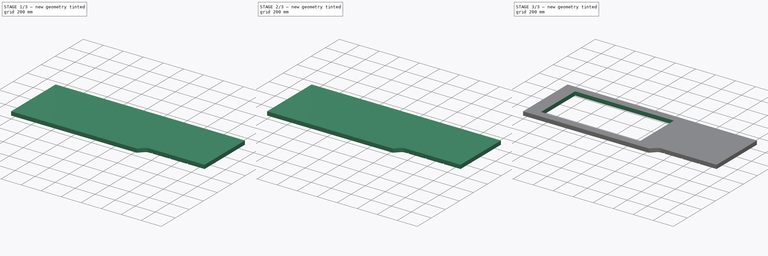
[diagram: build sequence overview — one tinted view per stage of 3, left to right]
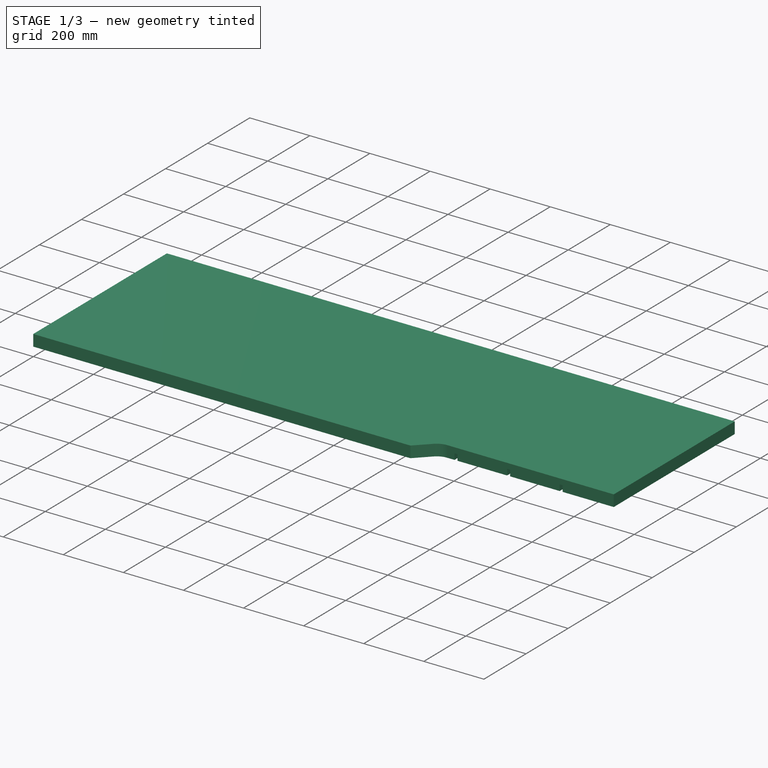
[diagram: stage 1 of 3 — iso view after this stage's code; geometry added in this stage tinted green]
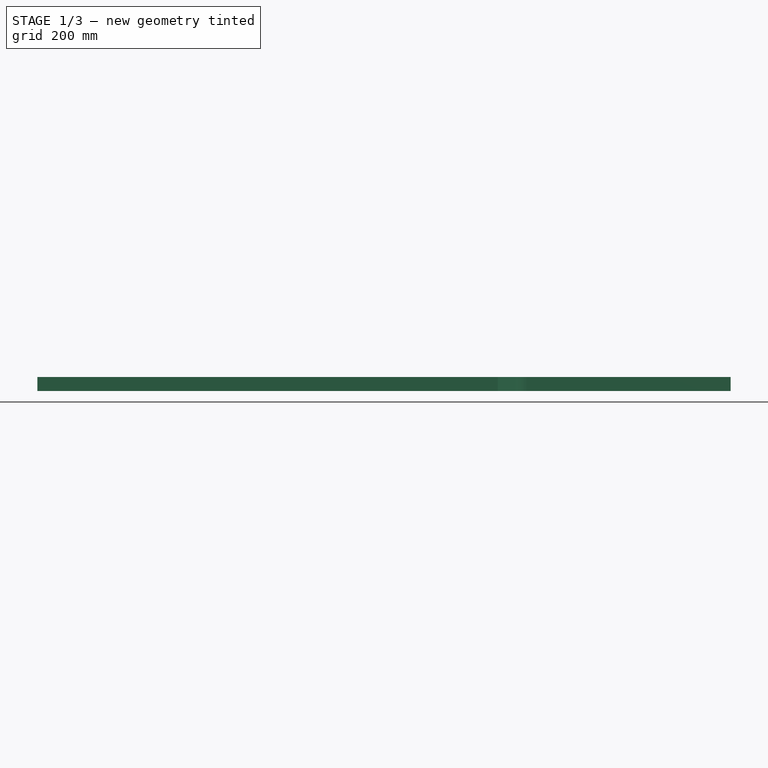
[diagram: stage 1 of 3 — front view after this stage's code; geometry added in this stage tinted green]
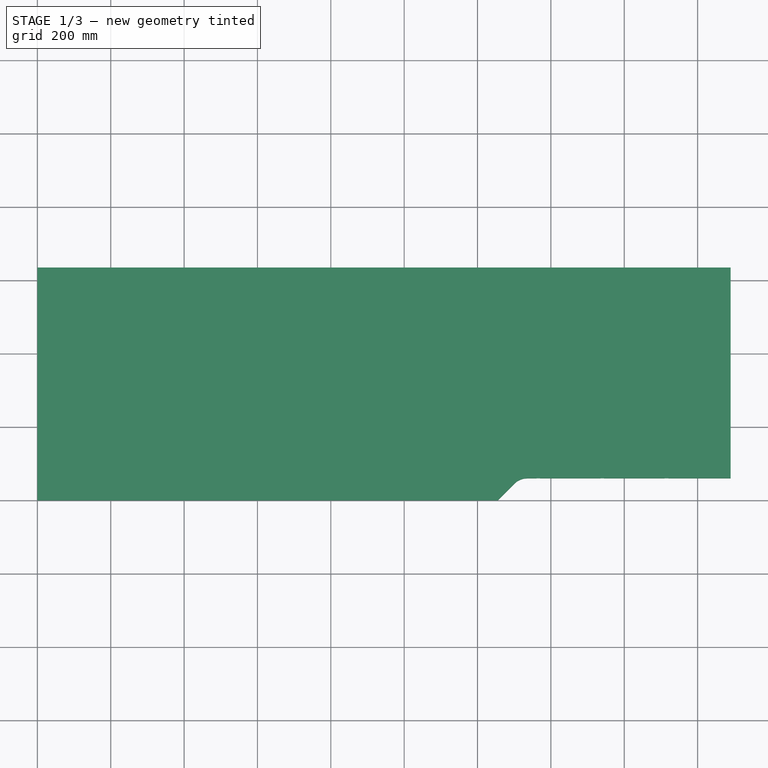
[diagram: stage 1 of 3 — top view after this stage's code; geometry added in this stage tinted green]
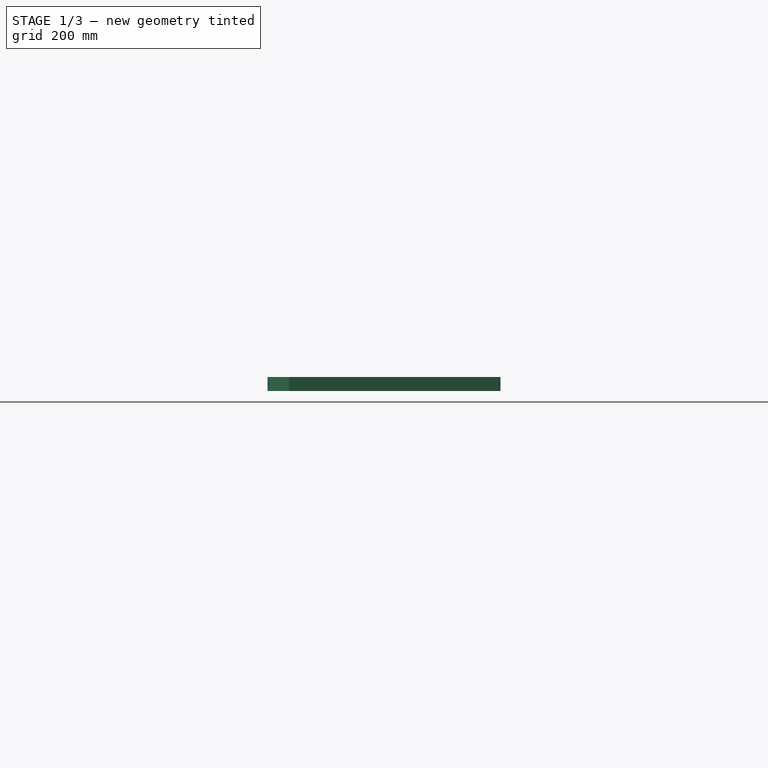
[diagram: stage 1 of 3 — right view after this stage's code; geometry added in this stage tinted green]
FCSTD DOCUMENT  (FreeCAD 1.0R39319 (Git))
Label: Worktop 1
License: All rights reserved
LicenseURL: https://en.wikipedia.org/wiki/All_rights_reserved
objects: PartDesign::Fillet×4, Sketcher::SketchObject×3, PartDesign::Pocket×2, PartDesign::Pad×1, PartDesign::Body×1
note: 28 computed .brp shape members not serialized (recipe doc carries the construction recipe); baked Part::Feature solids carry a one-line shape summary decoded from their .brp

FEATURE [Sketcher::SketchObject] Sketch
  ArcFitTolerance = 1e-06
  AttachmentSupport = -> [XY_Plane]
  FullyConstrained = true
  MakeInternals = false
  MapMode = 5
  sketch-geometry (7):
    g0: LineSegment StartX=0 StartY=0 StartZ=0 EndX=0 EndY=635 EndZ=0
    g1: LineSegment StartX=0 StartY=635 StartZ=0 EndX=1890 EndY=635 EndZ=0
    g2: LineSegment StartX=1890 StartY=635 StartZ=0 EndX=1890 EndY=60 EndZ=0
    g3: LineSegment StartX=1890 StartY=60 StartZ=0 EndX=1335.71 EndY=60 EndZ=0
    g4: LineSegment StartX=0 StartY=0 StartZ=0 EndX=1255 EndY=0 EndZ=0
    g5: ArcOfCircle CenterX=1335.71 CenterY=10 CenterZ=0 NormalX=0 NormalY=0 NormalZ=1 AngleXU=0 Radius=50 StartAngle=1.5708 EndAngle=2.35619
    g6: LineSegment StartX=1255 StartY=0 StartZ=0 EndX=1300.36 EndY=45.3553 EndZ=0
  constraints (19):
    c: Distance(g0) = 635
    c: Coincident(g0,g-1)
    c: PointOnObject(g0,g-2)
    c: Distance(g1) = 1890
    c: Coincident(g1,g0)
    c: Horizontal(g1)
    c: Coincident(g2,g1)
    c: Vertical(g2)
    c: Coincident(g3,g2)
    c: Horizontal(g3)
    c: Coincident(g4,g0)
    c: PointOnObject(g4,g-1)
    c: Distance(g3,g-1) = 60
    c: Tangent(g6,g5) = 1.5708
    c: Tangent(g5,g3) = -1.5708
    c: Radius(g5) = 50
    c: Distance(g4,g2) = 635
    c: Coincident(g6,g4)
    c: Angle(g6,g4) = 2.35619
FEATURE [PartDesign::Pad] Pad
  Direction = (0,0,1)
  Length = 38
  Length2 = 10
  Profile = -> Sketch
  ReferenceAxis = -> Sketch [N_Axis]
  Refine = true
  Suppressed = false
  Type = 0
FEATURE [Sketcher::SketchObject] Sketch001
  ArcFitTolerance = 1e-06
  AttachmentSupport = -> [Pad]
  ExternalGeometry = -> [Pad]
  FullyConstrained = true
  MakeInternals = false
  MapMode = 5
  Placement = pos=(0,0,0) rot=(1,0,0;3.14159rad)
  sketch-geometry (35):
    g0: LineSegment StartX=1535 StartY=-60 StartZ=0 EndX=1535 EndY=-130 EndZ=0
    g1: LineSegment StartX=1545 StartY=-130 StartZ=0 EndX=1570 EndY=-155 EndZ=0
    g2: LineSegment StartX=1535 StartY=-130 StartZ=0 EndX=1510 EndY=-155 EndZ=0
    g3: LineSegment StartX=1545 StartY=-60 StartZ=0 EndX=1545 EndY=-130 EndZ=0
    g4: LineSegment [constr] StartX=1535 StartY=-130 StartZ=0 EndX=1540 EndY=-130 EndZ=0
    g5: LineSegment [constr] StartX=1540 StartY=-130 StartZ=0 EndX=1545 EndY=-130 EndZ=0
    g6: LineSegment [constr] StartX=1540 StartY=-130 StartZ=0 EndX=1540 EndY=-190 EndZ=0
    g7: LineSegment StartX=1510 StartY=-155 StartZ=0 EndX=1510 EndY=-190 EndZ=0
    g8: LineSegment StartX=1510 StartY=-190 StartZ=0 EndX=1570 EndY=-190 EndZ=0
    g9: LineSegment StartX=1570 StartY=-155 StartZ=0 EndX=1570 EndY=-190 EndZ=0
    g10: LineSegment StartX=1710 StartY=-60 StartZ=0 EndX=1710 EndY=-130 EndZ=0
    g11: LineSegment StartX=1720 StartY=-130 StartZ=0 EndX=1745 EndY=-155 EndZ=0
    g12: LineSegment StartX=1710 StartY=-130 StartZ=0 EndX=1685 EndY=-155 EndZ=0
    g13: LineSegment StartX=1720 StartY=-60 StartZ=0 EndX=1720 EndY=-130 EndZ=0
    g14: LineSegment [constr] StartX=1710 StartY=-130 StartZ=0 EndX=1715 EndY=-130 EndZ=0
    g15: LineSegment [constr] StartX=1715 StartY=-130 StartZ=0 EndX=1720 EndY=-130 EndZ=0
    g16: LineSegment [constr] StartX=1715 StartY=-130 StartZ=0 EndX=1715 EndY=-190 EndZ=0
    g17: LineSegment StartX=1685 StartY=-155 StartZ=0 EndX=1685 EndY=-190 EndZ=0
    g18: LineSegment StartX=1685 StartY=-190 StartZ=0 EndX=1745 EndY=-190 EndZ=0
    g19: LineSegment StartX=1745 StartY=-155 StartZ=0 EndX=1745 EndY=-190 EndZ=0
    g20: LineSegment StartX=1720 StartY=-60 StartZ=0 EndX=1710 EndY=-60 EndZ=0
    g21: LineSegment StartX=1535 StartY=-60 StartZ=0 EndX=1545 EndY=-60 EndZ=0
    g22: LineSegment StartX=1360 StartY=-60 StartZ=0 EndX=1360 EndY=-130 EndZ=0
    g23: LineSegment StartX=1360 StartY=-130 StartZ=0 EndX=1335 EndY=-155 EndZ=0
    g24: LineSegment StartX=1335 StartY=-155 StartZ=0 EndX=1335 EndY=-190 EndZ=0
    g25: LineSegment StartX=1335 StartY=-190 StartZ=0 EndX=1395 EndY=-190 EndZ=0
    g26: LineSegment StartX=1395 StartY=-190 StartZ=0 EndX=1395 EndY=-155 EndZ=0
    g27: LineSegment StartX=1395 StartY=-155 StartZ=0 EndX=1370 EndY=-130 EndZ=0
    g28: LineSegment StartX=1370 StartY=-130 StartZ=0 EndX=1370 EndY=-60 EndZ=0
    g29: LineSegment [constr] StartX=1360 StartY=-130 StartZ=0 EndX=1370 EndY=-130 EndZ=0
    g30: LineSegment StartX=1360 StartY=-60 StartZ=0 EndX=1370 EndY=-60 EndZ=0
    g31: LineSegment [constr] StartX=1365 StartY=-130 StartZ=0 EndX=1365 EndY=-190 EndZ=0
    g32: LineSegment [constr] StartX=1365 StartY=-190 StartZ=0 EndX=1540 EndY=-190 EndZ=0
    g33: LineSegment [constr] StartX=1540 StartY=-190 StartZ=0 EndX=1715 EndY=-190 EndZ=0
    g34: LineSegment [constr] StartX=1715 StartY=-190 StartZ=0 EndX=1890 EndY=-190 EndZ=0
  constraints (99):
    c: Vertical(g0)
    c: Coincident(g2,g0)
    c: Vertical(g3)
    c: Coincident(g1,g3)
    c: Distance(g0,g3) = 10
    c: Coincident(g4,g0)
    c: Coincident(g5,g4)
    c: Coincident(g5,g1)
    c: Coincident(g6,g4)
    c: Vertical(g6)
    c: Horizontal(g5)
    c: Equal(g4,g5)
    c: DistanceY(g6,g6) = 60
    c: Coincident(g7,g2)
    c: Vertical(g7)
    c: Coincident(g8,g7)
    c: Horizontal(g8)
    c: Coincident(g9,g1)
    c: Coincident(g9,g8)
    c: Vertical(g9)
    c: PointOnObject(g6,g8)
    c: Equal(g1,g2)
    c: Equal(g9,g7)
    c: DistanceX(g8,g8) = 60
    c: Angle(g0,g2) = 2.35619
    c: DistanceY(g3,g3) = 70
    c: Equal(g3,g0)
    c: Vertical(g10)
    c: Coincident(g12,g10)
    c: Vertical(g13)
    c: Coincident(g11,g13)
    c: Distance(g10,g13) = 10
    c: Coincident(g14,g10)
    c: Coincident(g15,g14)
    c: Coincident(g15,g11)
    c: Coincident(g16,g14)
    c: Vertical(g16)
    c: Horizontal(g15)
    c: Equal(g14,g15)
    c: DistanceY(g16,g16) = 60
    c: Coincident(g17,g12)
    c: Vertical(g17)
    c: Coincident(g18,g17)
    c: Horizontal(g18)
    c: Coincident(g19,g11)
    c: Coincident(g19,g18)
    c: Vertical(g19)
    c: PointOnObject(g16,g18)
    c: Equal(g11,g12)
    c: Equal(g19,g17)
    c: DistanceX(g18,g18) = 60
    c: Angle(g10,g12) = 2.35619
    c: DistanceY(g13,g13) = 70
    c: Equal(g13,g10)
    c: Coincident(g20,g13)
    c: Coincident(g20,g10)
    c: Horizontal(g20)
    c: Coincident(g21,g0)
    c: Coincident(g21,g3)
    c: Horizontal(g21)
    c: PointOnObject(g3,g-3)
    c: PointOnObject(g10,g-3)
    c: PointOnObject(g22,g-3)
    c: Vertical(g22)
    c: Coincident(g23,g22)
    c: Coincident(g24,g23)
    c: Vertical(g24)
    c: Coincident(g25,g24)
    c: Horizontal(g25)
    c: Coincident(g26,g25)
    c: Vertical(g26)
    c: Coincident(g27,g26)
    c: Coincident(g28,g27)
    c: PointOnObject(g28,g-3)
    c: Vertical(g28)
    c: Coincident(g29,g22)
    c: Coincident(g29,g27)
    c: Horizontal(g29)
    c: Coincident(g30,g22)
    c: Coincident(g30,g28)
    c: Equal(g24,g26)
    c: Symmetric(g29,g29,g31)
    c: Symmetric(g25,g25,g31)
    c: Vertical(g31)
    c: DistanceX(g30,g30) = 10
    c: DistanceY(g22,g22) = 70
    c: Angle(g22,g23) = 2.35619
    c: Distance(g25,g29) = 60
    c: Distance(g26,g24) = 60
    c: Coincident(g32,g31)
    c: Coincident(g32,g6)
    c: Coincident(g33,g6)
    c: Coincident(g33,g16)
    c: Coincident(g34,g16)
    c: PointOnObject(g34,g-4)
    c: Horizontal(g34)
    c: Equal(g32,g33)
    c: Equal(g34,g33)
    c: DistanceX(g34,g34) = 175
FEATURE [PartDesign::Pocket] Pocket
  BaseFeature = -> Pad
  Direction = (0,0,1)
  Length = 20
  Length2 = 5
  Profile = -> Sketch001
  ReferenceAxis = -> Sketch001 [N_Axis]
  Refine = true
  Suppressed = false
  Type = 0
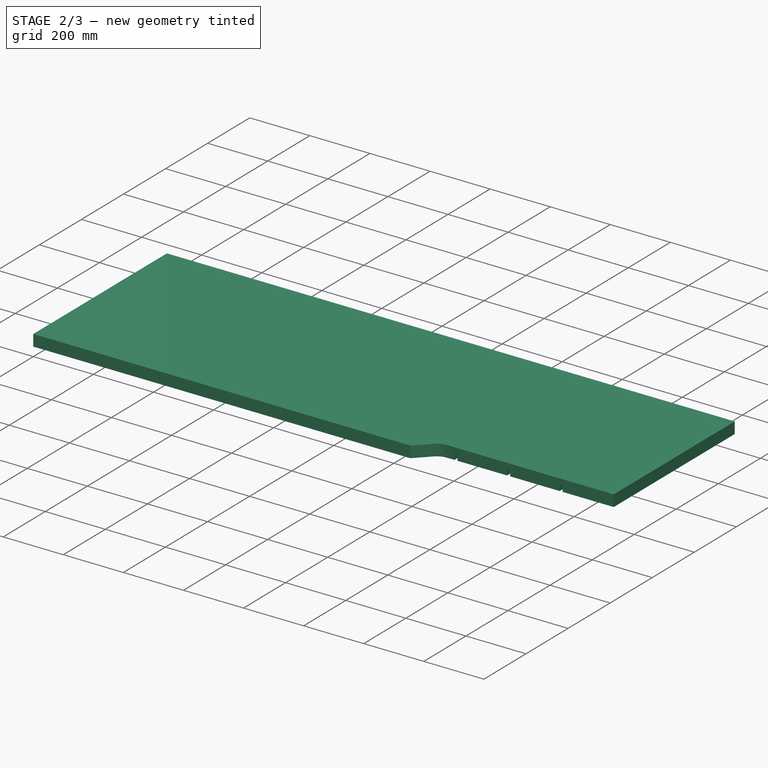
[diagram: stage 2 of 3 — iso view after this stage's code; geometry added in this stage tinted green]
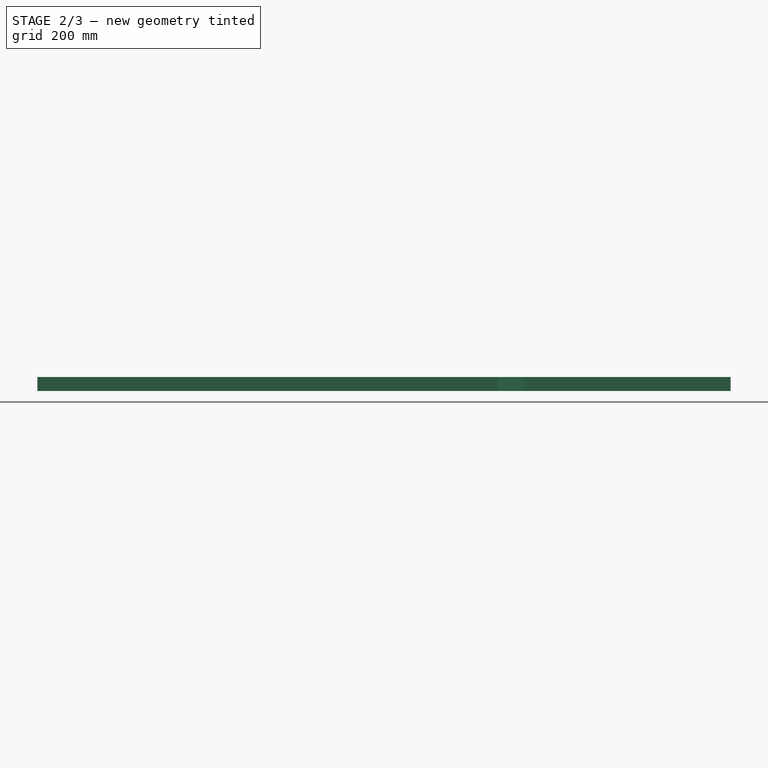
[diagram: stage 2 of 3 — front view after this stage's code; geometry added in this stage tinted green]
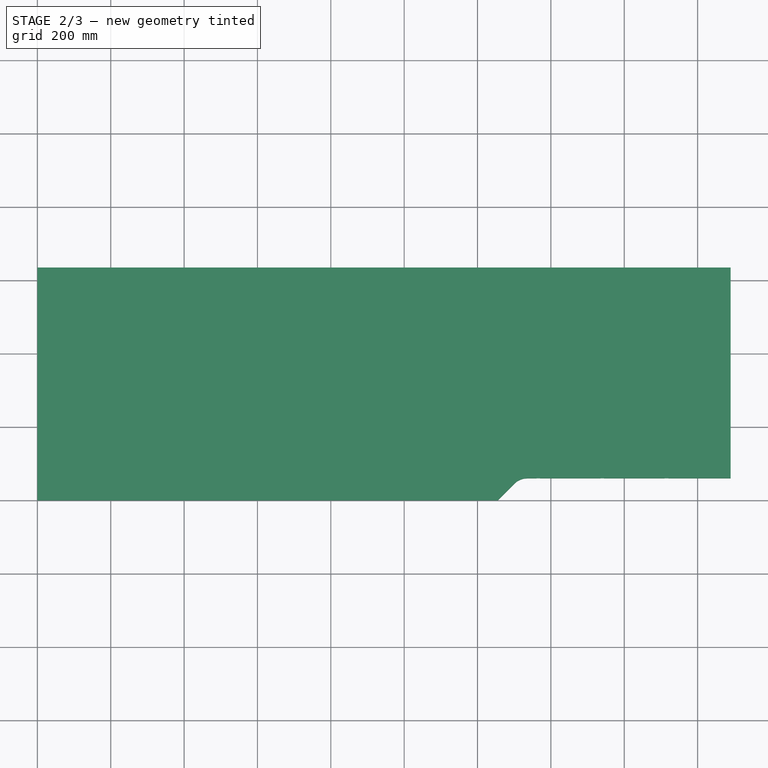
[diagram: stage 2 of 3 — top view after this stage's code; geometry added in this stage tinted green]
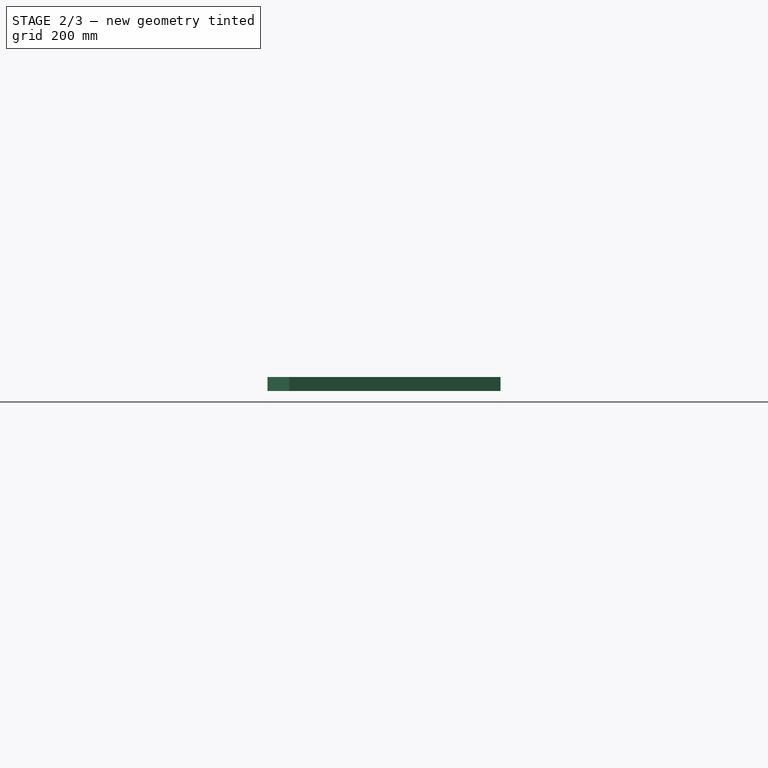
[diagram: stage 2 of 3 — right view after this stage's code; geometry added in this stage tinted green]
FEATURE [PartDesign::Fillet] Fillet
  Base = -> Pocket [Edge76,Edge74,Edge72,Edge70]
  BaseFeature = -> Pocket
  Radius = 4
  Refine = true
  SupportTransform = false
  Suppressed = false
  UseAllEdges = false
FEATURE [PartDesign::Fillet] Fillet001
  Base = -> Fillet [Edge62,Edge66,Edge74,Edge70]
  BaseFeature = -> Fillet
  Radius = 4
  Refine = true
  SupportTransform = false
  Suppressed = false
  UseAllEdges = false
FEATURE [Sketcher::SketchObject] Sketch002
  ArcFitTolerance = 1e-06
  AttachmentSupport = -> [Fillet001]
  ExternalGeometry = -> [Fillet001]
  FullyConstrained = true
  MakeInternals = false
  MapMode = 5
  Placement = pos=(0,0,38) rot=(0,0,1;0rad)
  sketch-geometry (6):
    g0: LineSegment StartX=127 StartY=560.5 StartZ=0 EndX=127 EndY=74.5 EndZ=0
    g1: LineSegment StartX=127 StartY=74.5 StartZ=0 EndX=1113 EndY=74.5 EndZ=0
    g2: LineSegment StartX=1113 StartY=74.5 StartZ=0 EndX=1113 EndY=560.5 EndZ=0
    g3: LineSegment StartX=1113 StartY=560.5 StartZ=0 EndX=127 EndY=560.5 EndZ=0
    g4: LineSegment [constr] StartX=620 StartY=560.5 StartZ=0 EndX=620 EndY=635 EndZ=0
    g5: LineSegment [constr] StartX=620 StartY=74.5 StartZ=0 EndX=620 EndY=0 EndZ=0
  constraints (18):
    c: Coincident(g0,g1)
    c: Coincident(g1,g2)
    c: Coincident(g2,g3)
    c: Coincident(g3,g0)
    c: Vertical(g0)
    c: Vertical(g2)
    c: Horizontal(g1)
    c: Horizontal(g3)
    c: Distance(g0,g2) = 986
    c: Distance(g1,g3) = 486
    c: Symmetric(g3,g3,g4)
    c: PointOnObject(g4,g-3)
    c: Vertical(g4)
    c: Symmetric(g1,g1,g5)
    c: PointOnObject(g5,g-1)
    c: Vertical(g5)
    c: Equal(g4,g5)
    c: Distance(g-2,g2) = 1113
FEATURE [PartDesign::Fillet] Fillet002
  Base = -> Fillet001 [Edge115,Edge113,Edge107,Edge109]
  BaseFeature = -> Fillet001
  Radius = 3
  Refine = true
  SupportTransform = false
  Suppressed = false
  UseAllEdges = false
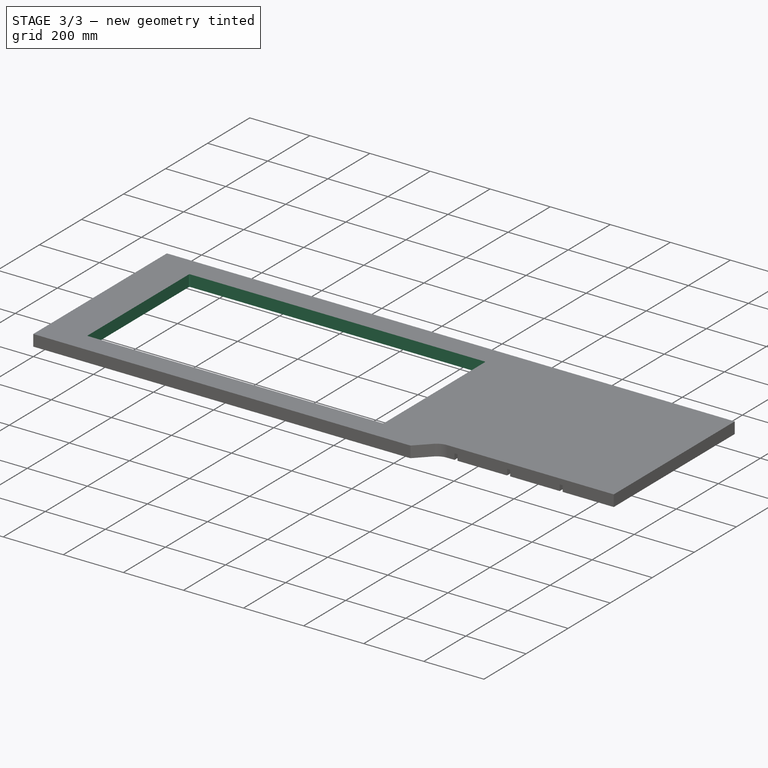
[diagram: stage 3 of 3 — iso view after this stage's code; geometry added in this stage tinted green]
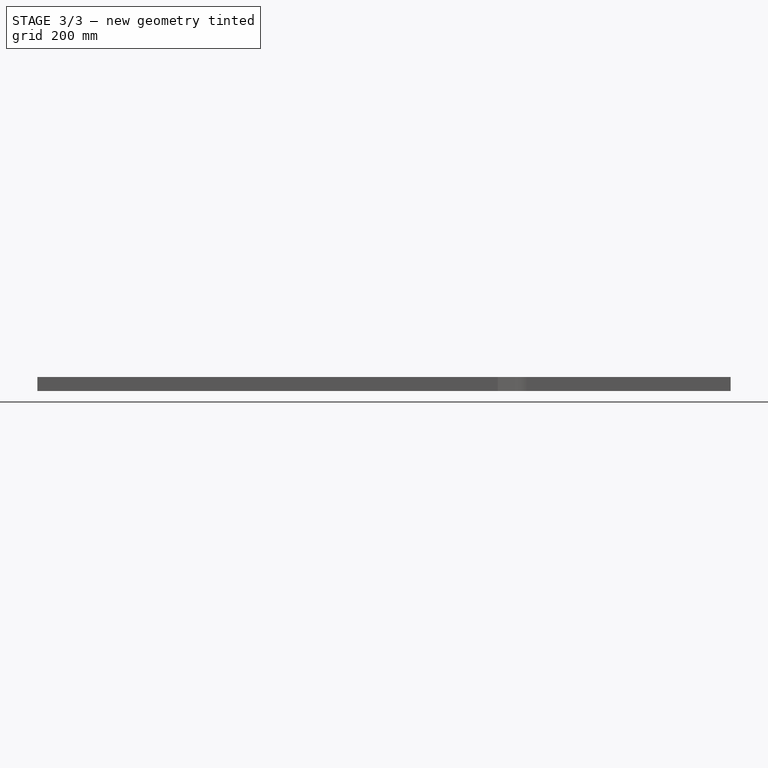
[diagram: stage 3 of 3 — front view after this stage's code; geometry added in this stage tinted green]
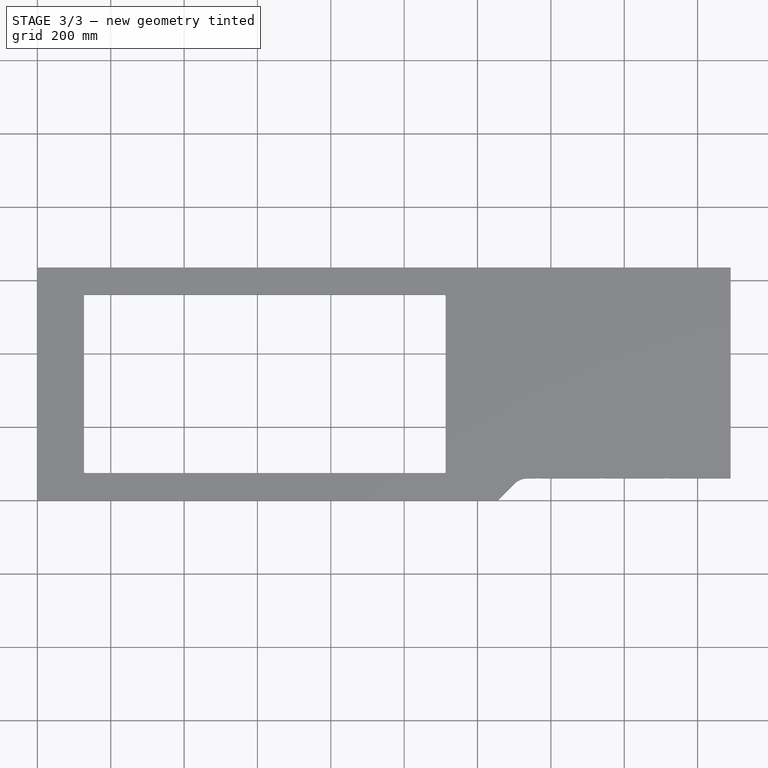
[diagram: stage 3 of 3 — top view after this stage's code; geometry added in this stage tinted green]
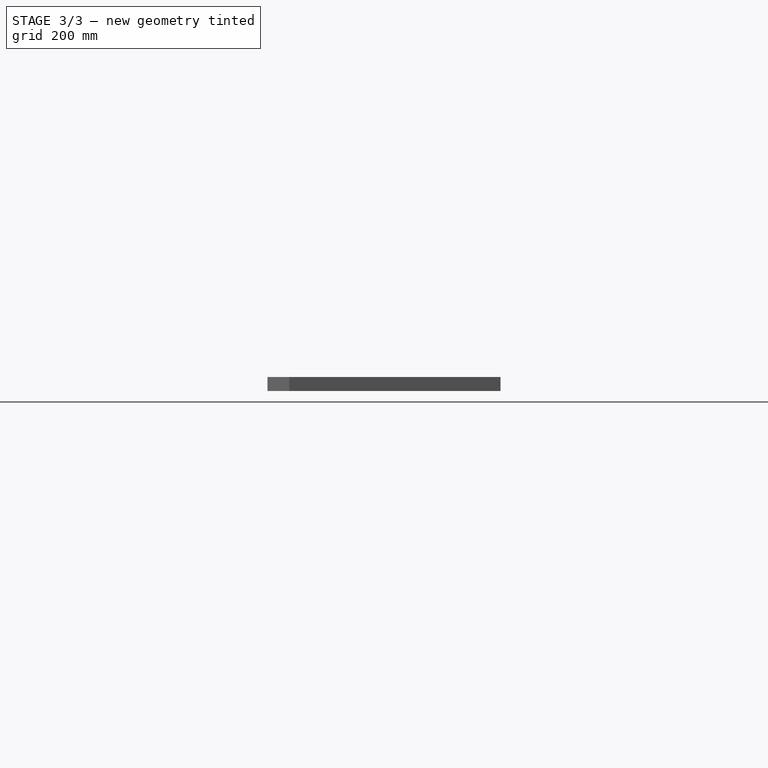
[diagram: stage 3 of 3 — right view after this stage's code; geometry added in this stage tinted green]
FEATURE [PartDesign::Pocket] Pocket001
  BaseFeature = -> Fillet002
  Direction = (0,0,-1)
  Length = 5
  Length2 = 5
  Profile = -> Sketch002
  ReferenceAxis = -> Sketch002 [N_Axis]
  Refine = true
  Suppressed = false
  Type = 1
FEATURE [PartDesign::Fillet] Fillet003
  Base = -> Pocket001 [Edge138,Edge136,Edge135,Edge140]
  BaseFeature = -> Pocket001
  Radius = 3
  Refine = true
  SupportTransform = false
  Suppressed = false
  UseAllEdges = false
FEATURE [PartDesign::Body] Body
  AllowCompound = false
  Group = -> [Sketch,Pad,Sketch001,Pocket,Fillet,Fillet001,Sketch002,Fillet002,Pocket001,Fillet003]
  Origin = -> Origin
  Tip = -> Fillet003
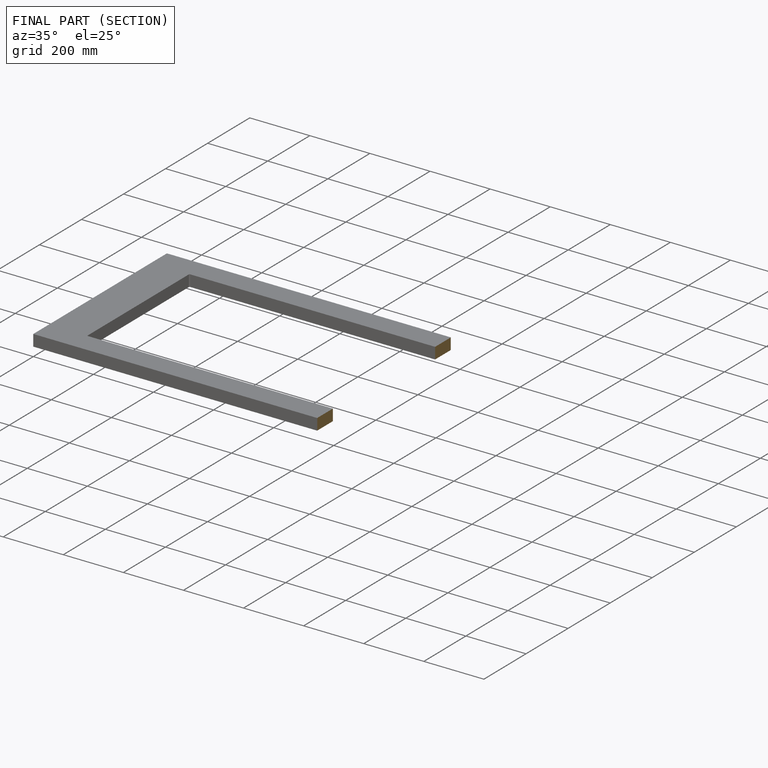
[diagram: finished part — half-section view (interior)]
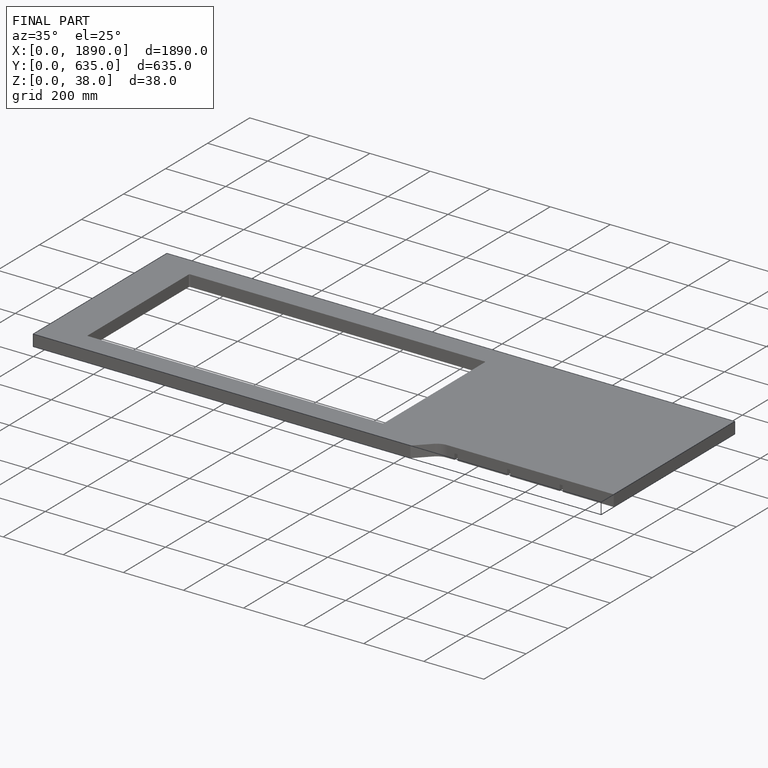
[diagram: finished part — iso view with bounding-box wireframe]
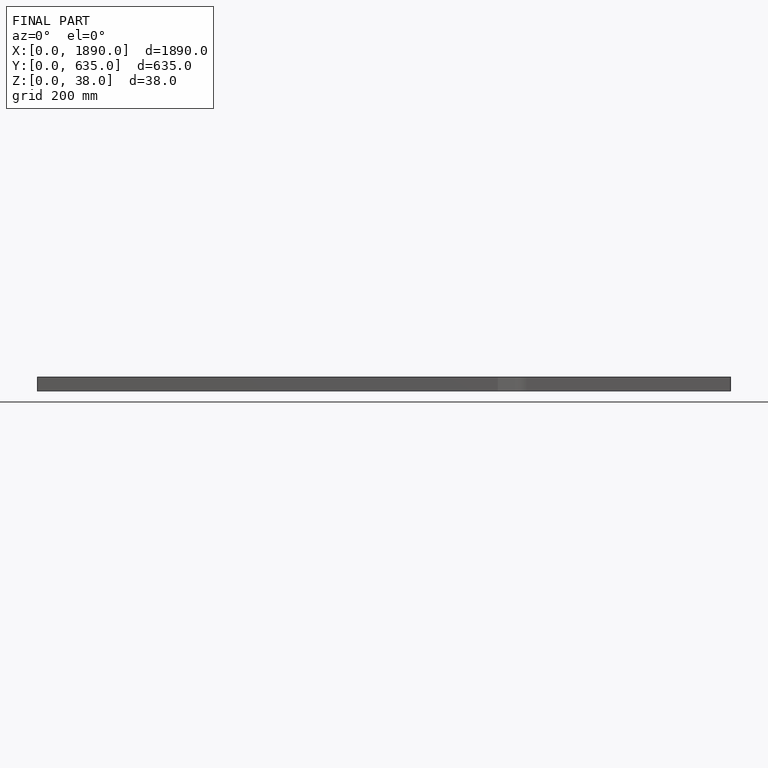
[diagram: finished part — front view with bounding-box wireframe]
